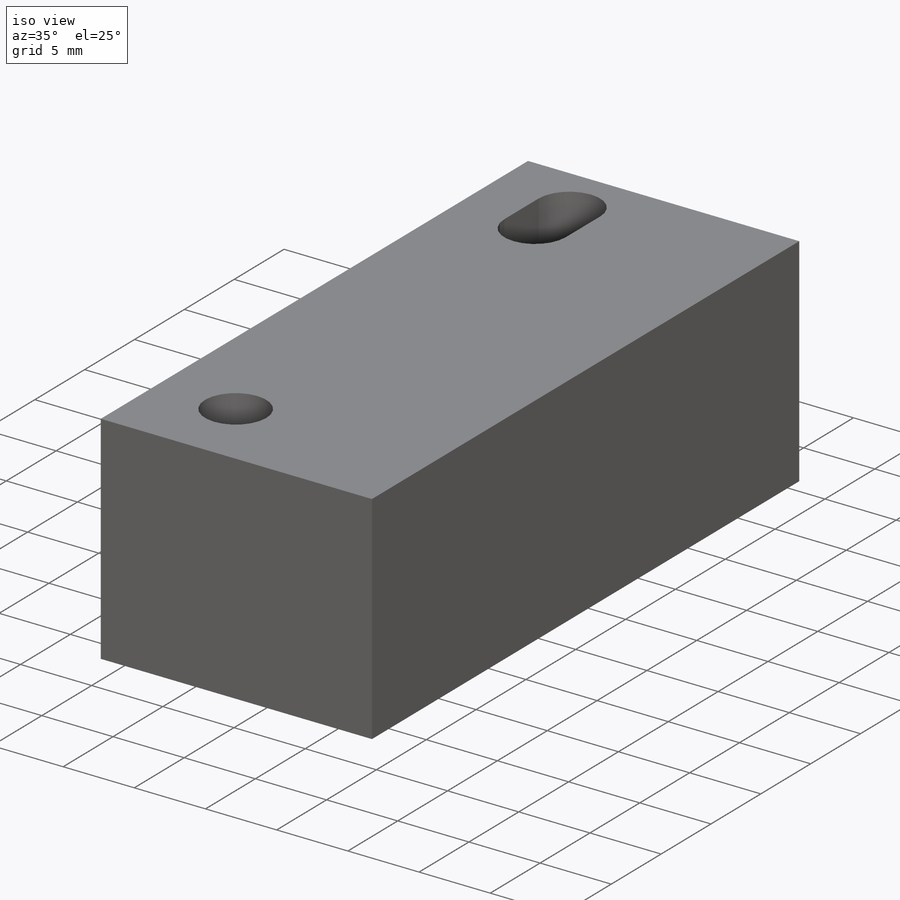
[diagram: iso view]
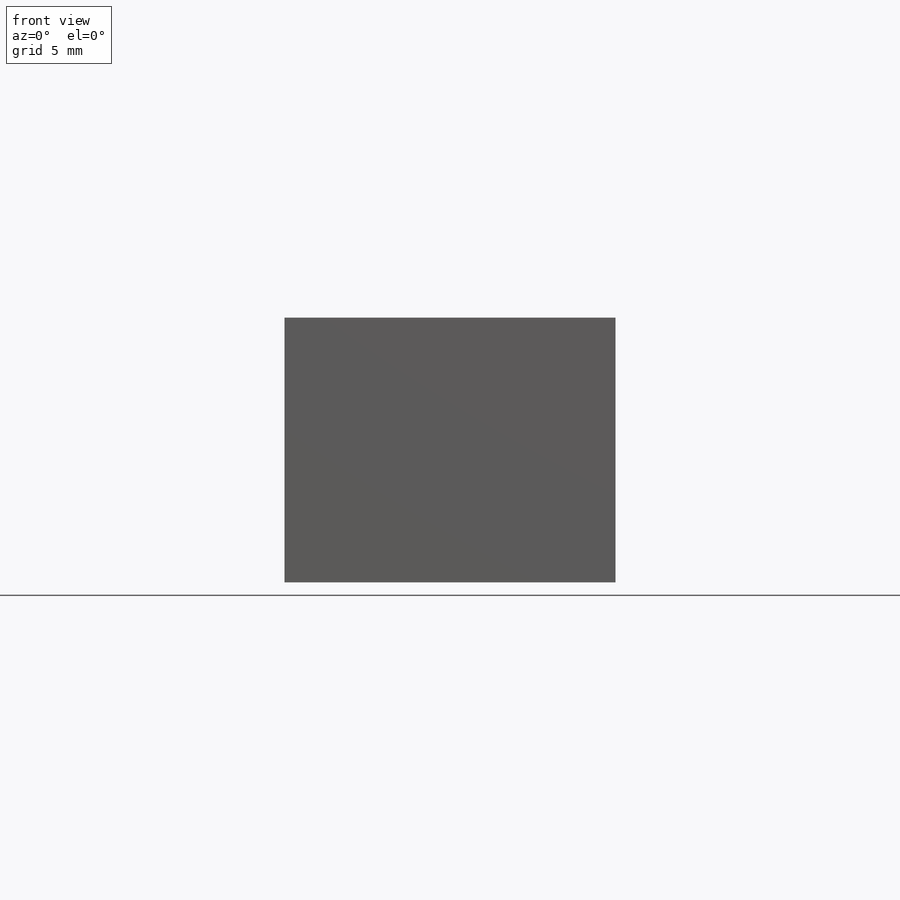
[diagram: front view]
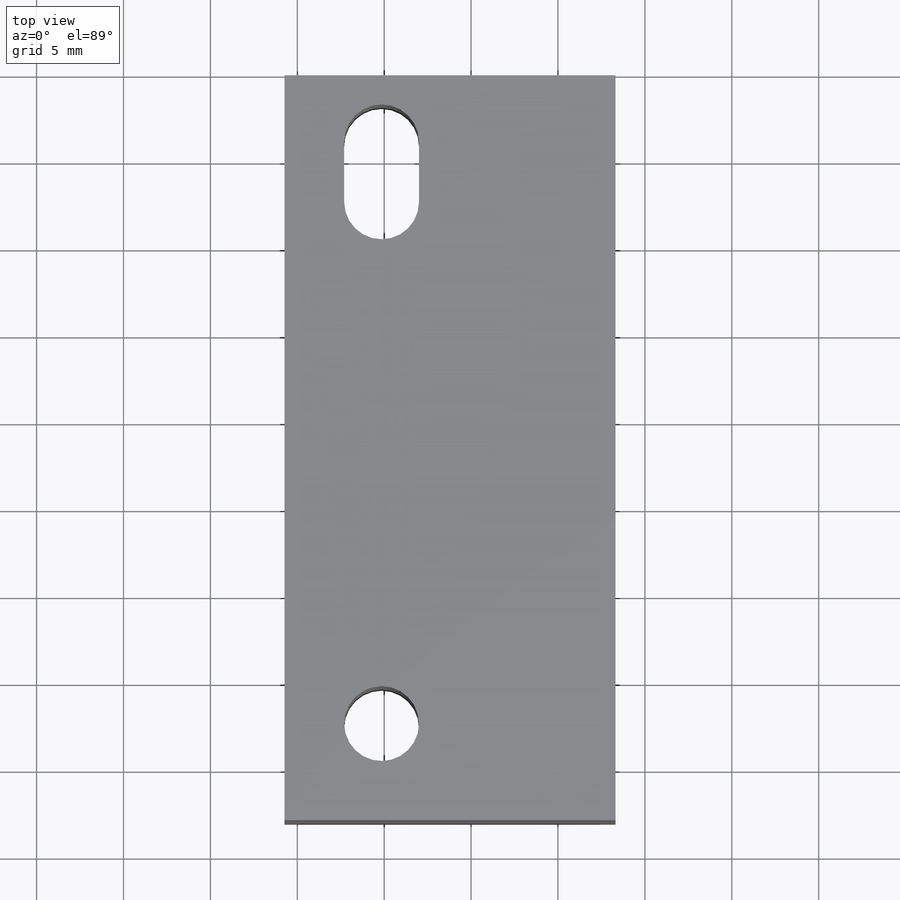
[diagram: top view]
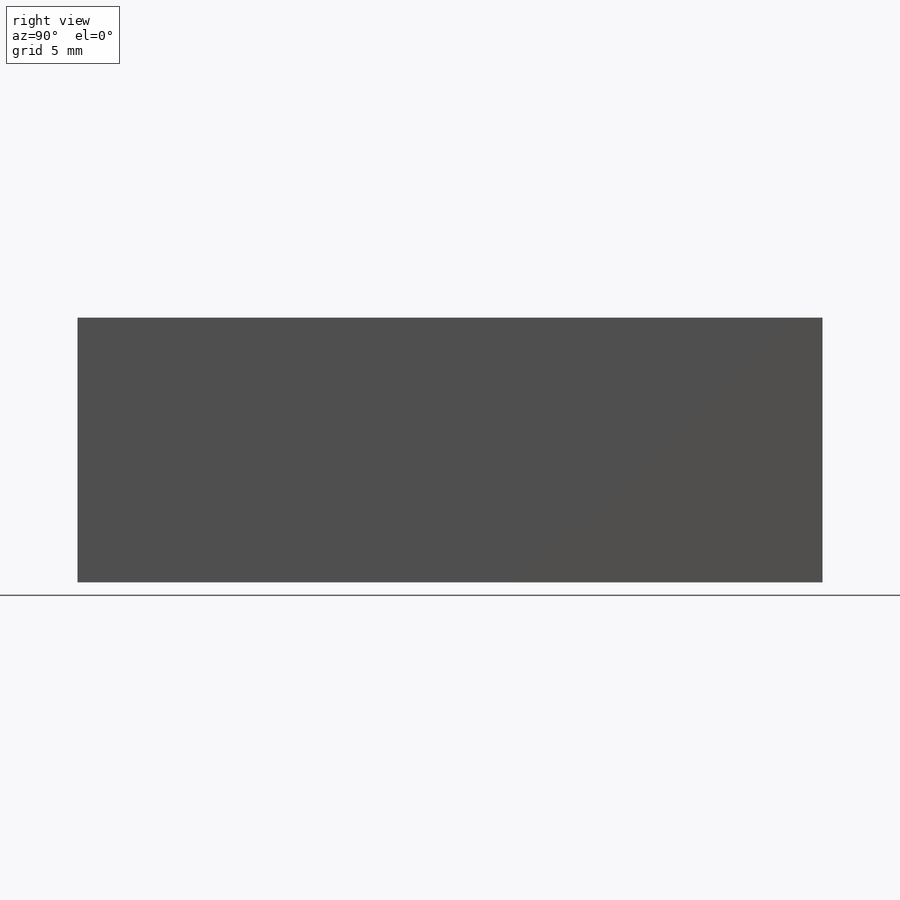
[diagram: right view]
SOLIDWORKS PART (.sldprt)
format: sldprt  version: not decoded by parser v0  size: 184,832 bytes
history: native  units: mm
features: sketch x4, extrude x3, plane x2, material x1, hole x1, cut_extrude x1 (+11 scaffold rows collapsed)
feature tree (23):
  scaffold x11  (default folders/planes/origin — collapsed)
  material  "Material <not specified>"
  sketch  "Sketch1"  dims[D1=42.8625mm D2=19.05mm]
  extrude  "Boss-Extrude1"  Depth=15.24mm
  sketch  "Sketch4"  dims[c1.D2=1.7272mm c1.D1=4.3053mm c2.D2=3.4544mm c2.D3=5.588mm]
  hole  "#18 (0.1695) Diameter Hole1"  Diameter=4.3053mm Depth=15.24mm
  sketch  "Sketch6"  dims[D1=31.75mm D2=5.588mm]
  sketch  "Sketch5"  dims[hole-wizard template sketch: 60 standard entries collapsed; hole parameters kept: c18.Thru Hole Depth=15.24mm]
  cut_extrude  "Cut-Extrude1"  [1 undecoded]
  extrude  "Axis2"  [1 undecoded]
  plane  "Plane1"
  plane  "Plane2"
  extrude  "Axis3"  [1 undecoded]
decode coverage: 6 of 9 modeling features carry decoded parameters
note: ~ marks probable driven/reference dimensions
note: 3 parameter values undecoded
summary: no parameter record found for 3 features
note: suppression state not decoded; provenance and decode notes live in map.json
